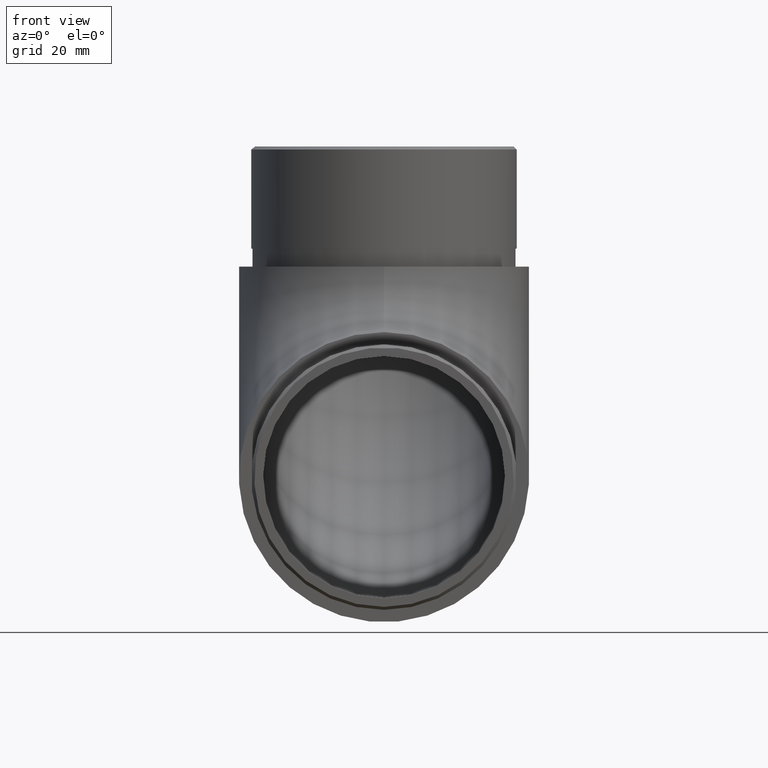
[diagram: clean part render]
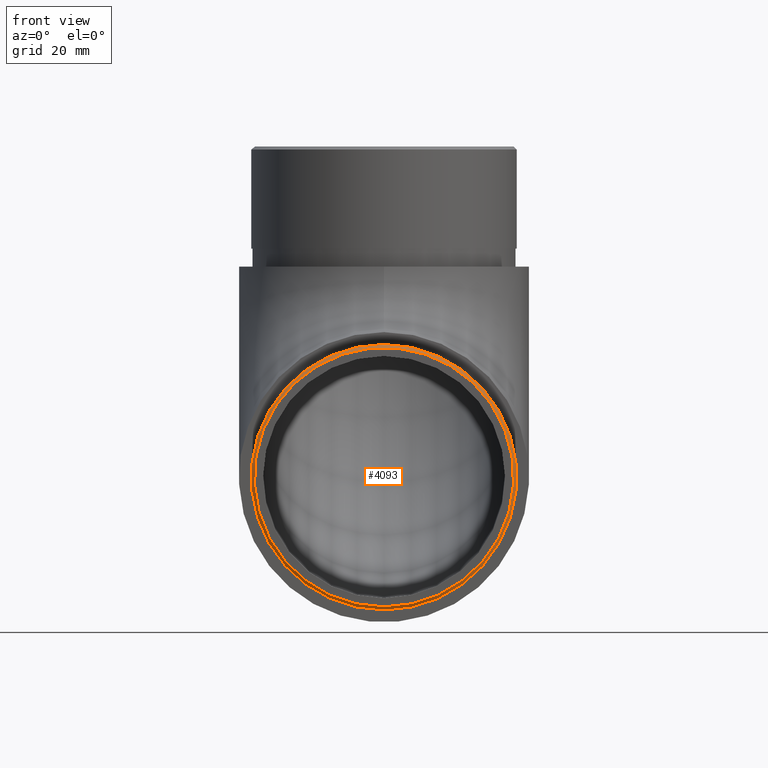
[diagram: same view with one face highlighted and labeled with its STEP entity id]
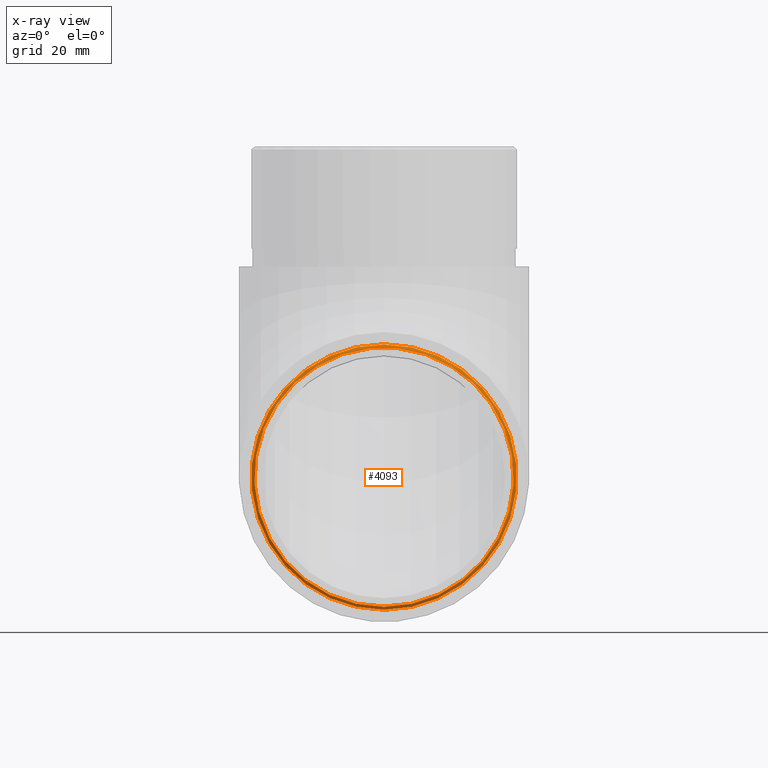
[diagram: x-ray of the same camera — body ghosted, the highlighted face saturated]
A machine part, front view. The second image highlights one B-rep face of the part: STEP entity #4093.
The next image is the same camera in x-ray: the body ghosted, the highlighted face saturated — about 0% of this face is hidden behind the body in this view.
In plain terms, the highlighted conical surface has half-angle 45 deg.
Its self-contained STEP definition (entity closure, byte-faithful):
#166 = AXIS2_PLACEMENT_3D ( 'NONE', #1420, #13485, #309 ) ;
#309 = DIRECTION ( 'NONE',  ( 0.0000000000000000000, 0.0000000000000000000, 1.000000000000000000 ) ) ;
#1120 = DIRECTION ( 'NONE',  ( 0.0000000000000000000, 0.0000000000000000000, -1.000000000000000000 ) ) ;
#1316 = CONICAL_SURFACE ( 'NONE', #166, 21.60000000000000100, 0.7853981633974447300 ) ;
#1420 = CARTESIAN_POINT ( 'NONE',  ( 0.0000000000000000000, -20.00000000000000000, 24.15000000000000600 ) ) ;
#1613 = EDGE_LOOP ( 'NONE', ( #9373 ) ) ;
#2238 = VERTEX_POINT ( 'NONE', #4227 ) ;
#2374 = CARTESIAN_POINT ( 'NONE',  ( 0.0000000000000000000, -20.00000000000000000, 24.15000000000000600 ) ) ;
#2513 = EDGE_CURVE ( 'NONE', #5892, #5892, #3260, .T. ) ;
#3260 = CIRCLE ( 'NONE', #9396, 22.10000000000000100 ) ;
#3829 = EDGE_LOOP ( 'NONE', ( #11187 ) ) ;
#4093 = ADVANCED_FACE ( 'NONE', ( #13736, #4096 ), #1316, .T. ) ;
#4096 = FACE_BOUND ( 'NONE', #3829, .T. ) ;
#4227 = CARTESIAN_POINT ( 'NONE',  ( 0.0000000000000000000, -20.00000000000000000, 2.550000000000003800 ) ) ;
#4265 = DIRECTION ( 'NONE',  ( 0.0000000000000000000, 0.0000000000000000000, -1.000000000000000000 ) ) ;
#5892 = VERTEX_POINT ( 'NONE', #11927 ) ;
#6482 = CARTESIAN_POINT ( 'NONE',  ( 0.0000000000000000000, -19.49999999999999600, 24.15000000000000600 ) ) ;
#8972 = AXIS2_PLACEMENT_3D ( 'NONE', #2374, #13314, #1120 ) ;
#9373 = ORIENTED_EDGE ( 'NONE', *, *, #2513, .F. ) ;
#9396 = AXIS2_PLACEMENT_3D ( 'NONE', #6482, #14345, #4265 ) ;
#11095 = EDGE_CURVE ( 'NONE', #2238, #2238, #11138, .T. ) ;
#11138 = CIRCLE ( 'NONE', #8972, 21.60000000000000100 ) ;
#11187 = ORIENTED_EDGE ( 'NONE', *, *, #11095, .F. ) ;
#11927 = CARTESIAN_POINT ( 'NONE',  ( 0.0000000000000000000, -19.49999999999999600, 2.050000000000003400 ) ) ;
#13314 = DIRECTION ( 'NONE',  ( 0.0000000000000000000, -1.000000000000000000, 0.0000000000000000000 ) ) ;
#13485 = DIRECTION ( 'NONE',  ( 0.0000000000000000000, 1.000000000000000000, 0.0000000000000000000 ) ) ;
#13736 = FACE_OUTER_BOUND ( 'NONE', #1613, .T. ) ;
#14345 = DIRECTION ( 'NONE',  ( 0.0000000000000000000, 1.000000000000000000, 0.0000000000000000000 ) ) ;